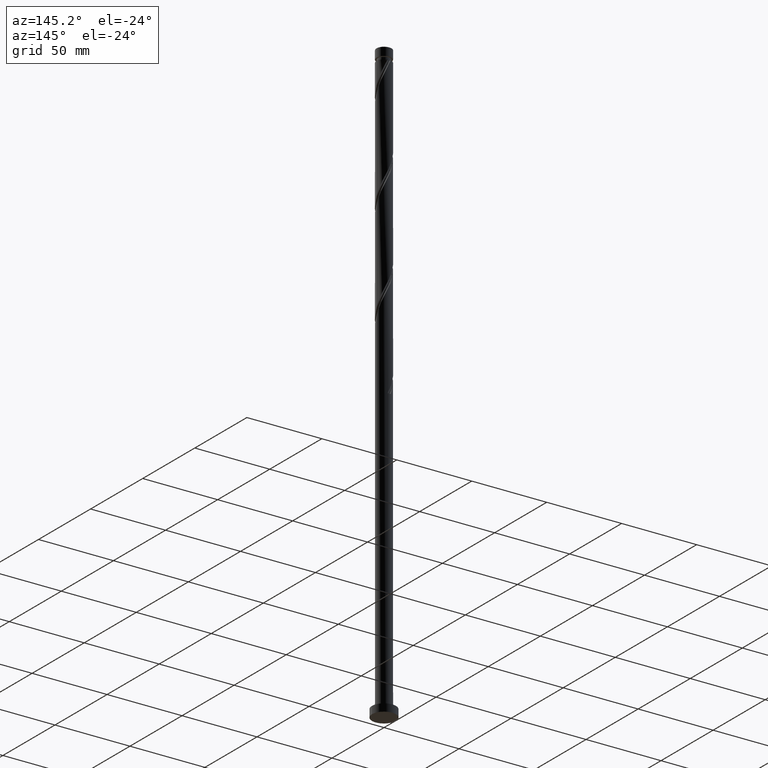
[diagram: clean part render]
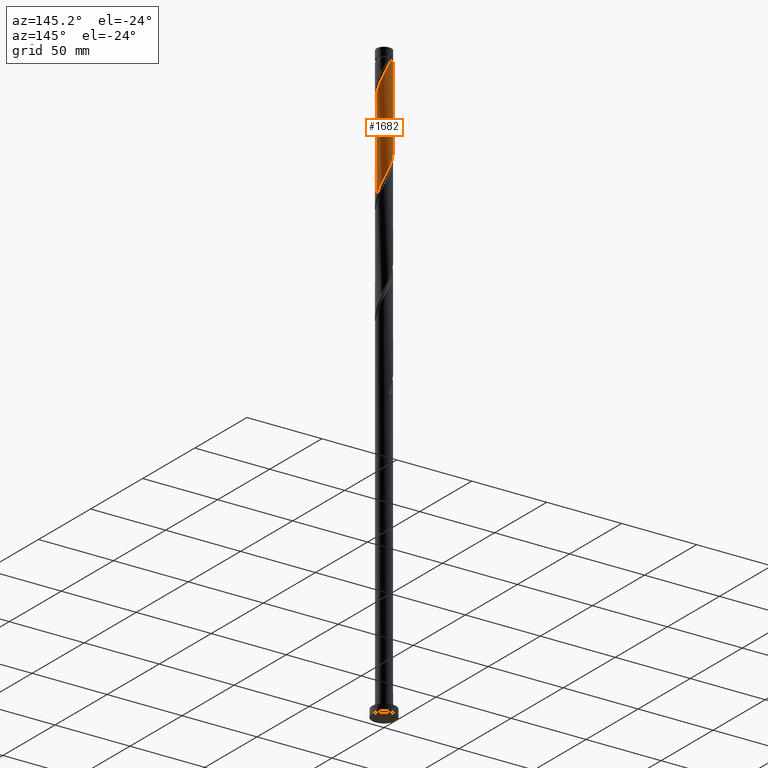
[diagram: same view with one face highlighted and labeled with its STEP entity id]
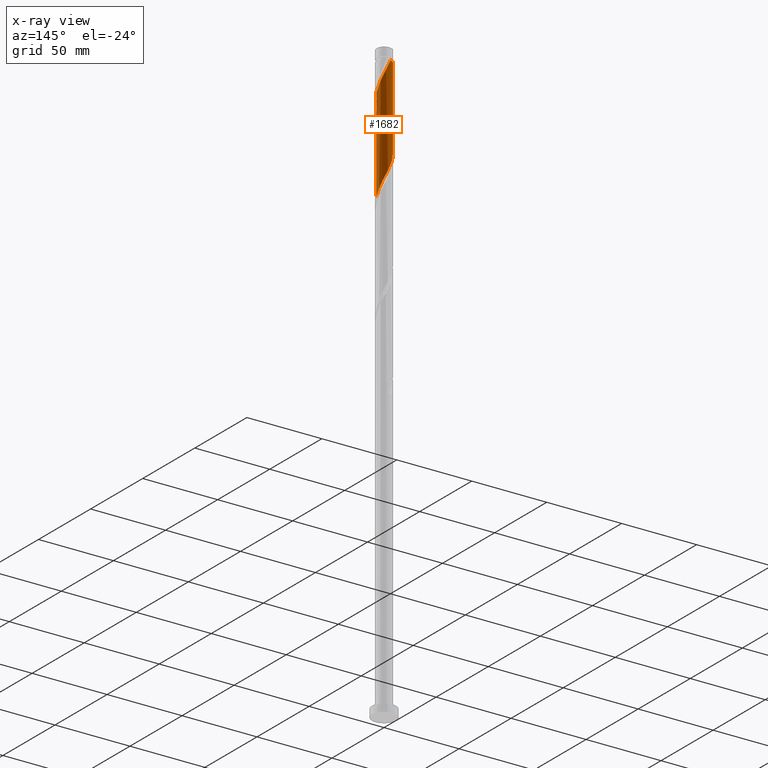
[diagram: x-ray of the same camera — body ghosted, the highlighted face saturated]
A machine part, auxiliary view. The second image highlights one B-rep face of the part: STEP entity #1682.
The next image is the same camera in x-ray: the body ghosted, the highlighted face saturated — about 0% of this face is hidden behind the body in this view.
In plain terms, the highlighted cylindrical surface (edge-blend (fillet) strip) has radius 5 mm, axis along (-0, -0, -1).
Its self-contained STEP definition (entity closure, byte-faithful):
#7 = VERTEX_POINT ( 'NONE', #1178 ) ;
#31 = DIRECTION ( 'NONE',  ( -0.000000000000000000, -0.000000000000000000, -1.000000000000000000 ) ) ;
#42 = EDGE_CURVE ( 'NONE', #919, #7, #567, .T. ) ;
#74 = ORIENTED_EDGE ( 'NONE', *, *, #615, .F. ) ;
#95 = CARTESIAN_POINT ( 'NONE',  ( 2.553307491452761369, 4.330911377627214343, 384.6917190658459731 ) ) ;
#104 = CARTESIAN_POINT ( 'NONE',  ( -0.4799766843048056120, 5.004577393676055586, 391.3583857325126587 ) ) ;
#106 = CARTESIAN_POINT ( 'NONE',  ( 5.000000000000007105, 8.969049252399088130E-17, 373.6773869334355709 ) ) ;
#109 = CARTESIAN_POINT ( 'NONE',  ( -4.769152779533163411, 1.501726261830403919, 341.3583857325127155 ) ) ;
#154 = CARTESIAN_POINT ( 'NONE',  ( 4.307186191949835319, 2.539320205857601653, 316.9139412880682585 ) ) ;
#163 = EDGE_CURVE ( 'NONE', #646, #7, #363, .T. ) ;
#166 = CARTESIAN_POINT ( 'NONE',  ( 0.000000000000000000, 0.000000000000000000, 392.4694968436237446 ) ) ;
#213 = CARTESIAN_POINT ( 'NONE',  ( 4.907956893912948537, 1.090014511032746825, 313.5806079547347736 ) ) ;
#254 = CARTESIAN_POINT ( 'NONE',  ( 4.611314989205103743, 2.002984417588409727, 378.0250523991794012 ) ) ;
#280 = CARTESIAN_POINT ( 'NONE',  ( 3.685109482041953211, 3.379344330689683318, 319.1361635102903733 ) ) ;
#314 = ORIENTED_EDGE ( 'NONE', *, *, #1352, .T. ) ;
#363 = CIRCLE ( 'NONE', #1511, 4.999999999999965361 ) ;
#367 = CARTESIAN_POINT ( 'NONE',  ( 4.999999999999999112, 0.2848686872321704033, 311.8671980631963834 ) ) ;
#406 = CARTESIAN_POINT ( 'NONE',  ( 2.075185990424289528, 4.549022214184805790, 385.8028301769570589 ) ) ;
#410 = CARTESIAN_POINT ( 'NONE',  ( -0.5710221055866057105, 4.995008134297783009, 329.1361635102904302 ) ) ;
#417 = CARTESIAN_POINT ( 'NONE',  ( 3.397958704004512942, 3.705408095291208070, 382.4694968436237446 ) ) ;
#421 = CARTESIAN_POINT ( 'NONE',  ( -4.977161795075916828, 0.4773473218073993607, 343.5806079547349441 ) ) ;
#427 = CARTESIAN_POINT ( 'NONE',  ( 4.926990569861238178, 1.000468106072394114, 375.8028301769571726 ) ) ;
#431 =( BOUNDED_CURVE ( )  B_SPLINE_CURVE ( 2, ( #1822, #1975, #421, #1045, #109, #1869, #1354, #1965, #1364, #1092, #1372, #1673, #1663, #1811, #891, #410, #1035, #1520, #740, #1986, #589, #1056, #1683, #1722, #280, #1556, #154, #774, #1406, #213, #1740, #367, #945 ),
 .UNSPECIFIED., .F., .T. ) 
 B_SPLINE_CURVE_WITH_KNOTS ( ( 3, 2, 2, 2, 2, 2, 2, 2, 2, 2, 2, 2, 2, 2, 2, 2, 3 ),
 ( 0.4295286012773114059, 0.4333333333333333481, 0.4416666666666666519, 0.4500000000000000111, 0.4583333333333333148, 0.4666666666666666741, 0.4749999999999999778, 0.4833333333333333370, 0.4916666666666666408, 0.5000000000000000000, 0.5083333333333333037, 0.5166666666666667185, 0.5250000000000000222, 0.5333333333333333259, 0.5416666666666666297, 0.5500000000000000444, 0.5545286012773112949 ),
 .UNSPECIFIED. ) 
 CURVE ( )  GEOMETRIC_REPRESENTATION_ITEM ( )  RATIONAL_B_SPLINE_CURVE ( ( 0.9066196499552259258, 0.9068171577856385390, 0.9090909090909374823, 0.9041108139711858671, 0.9090909090909374823, 0.9041108139711858671, 0.9090909090909374823, 0.9041108139711858671, 0.9090909090909374823, 0.9041108139711858671, 0.9090909090909374823, 0.9041108139711858671, 0.9090909090909374823, 0.9041108139711858671, 0.9090909090909374823, 0.9041108139711858671, 0.9090909090909374823, 0.9041108139711858671, 0.9090909090909374823, 0.9041108139711858671, 0.9090909090909374823, 0.9041108139711858671, 0.9090909090909374823, 0.9041108139711858671, 0.9090909090909374823, 0.9041108139711858671, 0.9090909090909374823, 0.9041108139711858671, 0.9090909090909374823, 0.9041108139711858671, 0.9090909090909374823, 0.9063845652764848104, 0.9066196499552259258 ) ) 
 REPRESENTATION_ITEM ( '' )  );
#452 = DIRECTION ( 'NONE',  ( -0.000000000000000000, -0.000000000000000000, -1.000000000000000000 ) ) ;
#542 = AXIS2_PLACEMENT_3D ( 'NONE', #1614, #31, #1917 ) ;
#550 = LINE ( 'NONE', #1492, #1131 ) ;
#567 =( BOUNDED_CURVE ( )  B_SPLINE_CURVE ( 2, ( #735, #1019, #585, #427, #1050, #254, #877, #1516, #1669, #417, #1493, #95, #406, #1970, #717, #1503, #1658, #104, #725 ),
 .UNSPECIFIED., .F., .T. ) 
 B_SPLINE_CURVE_WITH_KNOTS ( ( 3, 2, 2, 2, 2, 2, 2, 2, 2, 3 ),
 ( 0.6795286012773115170, 0.6833333333333333481, 0.6916666666666666519, 0.6999999999999999556, 0.7083333333333332593, 0.7166666666666666741, 0.7249999999999999778, 0.7333333333333333925, 0.7416666666666666963, 0.7500000000000000000 ),
 .UNSPECIFIED. ) 
 CURVE ( )  GEOMETRIC_REPRESENTATION_ITEM ( )  RATIONAL_B_SPLINE_CURVE ( ( 0.9066196499552304777, 0.9068171577856432020, 0.9090909090909421453, 0.9041108139711903080, 0.9090909090909421453, 0.9041108139711903080, 0.9090909090909421453, 0.9041108139711903080, 0.9090909090909421453, 0.9041108139711903080, 0.9090909090909421453, 0.9041108139711903080, 0.9090909090909421453, 0.9041108139711903080, 0.9090909090909421453, 0.9041108139711903080, 0.9090909090909421453, 0.9041108139711903080, 0.9090909090909421453 ) ) 
 REPRESENTATION_ITEM ( '' )  );
#578 = VECTOR ( 'NONE', #801, 1000.000000000000000 ) ;
#585 = CARTESIAN_POINT ( 'NONE',  ( 4.977161795075921269, 0.4773473218073948088, 374.6917190658459162 ) ) ;
#589 = CARTESIAN_POINT ( 'NONE',  ( 1.992011859373146621, 4.586053723204382315, 323.5806079547348872 ) ) ;
#615 = EDGE_CURVE ( 'NONE', #1274, #1239, #431, .T. ) ;
#646 = VERTEX_POINT ( 'NONE', #658 ) ;
#658 = CARTESIAN_POINT ( 'NONE',  ( -4.999999999999965361, 0.000000000000000000, 392.4694968436237446 ) ) ;
#717 = CARTESIAN_POINT ( 'NONE',  ( 1.084043297491217084, 4.881070592520091900, 388.0250523991794012 ) ) ;
#725 = CARTESIAN_POINT ( 'NONE',  ( -0.9949874371066238510, 4.900000000000007461, 392.4694968436238582 ) ) ;
#735 = CARTESIAN_POINT ( 'NONE',  ( 5.000000000000007105, 8.969049252399088130E-17, 373.6773869334355709 ) ) ;
#740 = CARTESIAN_POINT ( 'NONE',  ( 0.9949874371066255163, 4.900000000000001243, 325.8028301769571726 ) ) ;
#774 = CARTESIAN_POINT ( 'NONE',  ( 4.574079500281179378, 2.086616695005834021, 315.8028301769570021 ) ) ;
#790 = DIRECTION ( 'NONE',  ( -1.000000000000000000, 0.000000000000000000, 0.000000000000000000 ) ) ;
#801 = DIRECTION ( 'NONE',  ( -0.000000000000000000, -0.000000000000000000, -1.000000000000000000 ) ) ;
#877 = CARTESIAN_POINT ( 'NONE',  ( 4.352708902590737949, 2.460472558129313647, 379.1361635102903165 ) ) ;
#891 = CARTESIAN_POINT ( 'NONE',  ( -1.084043297491211311, 4.881070592520087459, 330.2472746214016297 ) ) ;
#895 = CYLINDRICAL_SURFACE ( 'NONE', #542, 5.000000000000000888 ) ;
#897 = ORIENTED_EDGE ( 'NONE', *, *, #163, .T. ) ;
#919 = VERTEX_POINT ( 'NONE', #106 ) ;
#942 = CARTESIAN_POINT ( 'NONE',  ( 5.000000000000000888, 6.123233995736766282E-16, 400.0000000000000000 ) ) ;
#945 = CARTESIAN_POINT ( 'NONE',  ( 5.000000000000000888, 4.320092056572251041E-15, 311.2616067538119182 ) ) ;
#1007 = DIRECTION ( 'NONE',  ( -0.000000000000000000, -0.000000000000000000, -1.000000000000000000 ) ) ;
#1019 = CARTESIAN_POINT ( 'NONE',  ( 5.000000000000007105, 0.2392199964337486384, 374.1859354589996656 ) ) ;
#1035 = CARTESIAN_POINT ( 'NONE',  ( -0.04552271064089768310, 4.999792763986913968, 328.0250523991794012 ) ) ;
#1045 = CARTESIAN_POINT ( 'NONE',  ( -4.926990569861231961, 1.000468106072394114, 342.4694968436237446 ) ) ;
#1050 = CARTESIAN_POINT ( 'NONE',  ( 4.769152779533169628, 1.501726261830401254, 376.9139412880680879 ) ) ;
#1056 = CARTESIAN_POINT ( 'NONE',  ( 2.474025528837849652, 4.376684840084808847, 322.4694968436237446 ) ) ;
#1092 = CARTESIAN_POINT ( 'NONE',  ( -3.397958704004507613, 3.705408095291204962, 335.8028301769570021 ) ) ;
#1110 = CARTESIAN_POINT ( 'NONE',  ( 5.000000000000000888, 4.320092056572251041E-15, 311.2616067538119182 ) ) ;
#1131 = VECTOR ( 'NONE', #1007, 1000.000000000000000 ) ;
#1178 = CARTESIAN_POINT ( 'NONE',  ( -0.9949874371066238510, 4.900000000000006573, 392.4694968436238582 ) ) ;
#1239 = VERTEX_POINT ( 'NONE', #1110 ) ;
#1274 = VERTEX_POINT ( 'NONE', #1450 ) ;
#1352 = EDGE_CURVE ( 'NONE', #919, #1239, #1727, .T. ) ;
#1354 = CARTESIAN_POINT ( 'NONE',  ( -4.352708902590731732, 2.460472558129311871, 339.1361635102904302 ) ) ;
#1364 = CARTESIAN_POINT ( 'NONE',  ( -3.746030759990437886, 3.311684396980709710, 336.9139412880681448 ) ) ;
#1372 = CARTESIAN_POINT ( 'NONE',  ( -2.975633097728630272, 4.018159736459207210, 334.6917190658459731 ) ) ;
#1406 = CARTESIAN_POINT ( 'NONE',  ( 4.741018197097064402, 1.588315603019288647, 314.6917190658459731 ) ) ;
#1450 = CARTESIAN_POINT ( 'NONE',  ( -5.000000000000000000, -3.169064069181027409E-15, 344.5949400871452326 ) ) ;
#1492 = CARTESIAN_POINT ( 'NONE',  ( -5.000000000000000888, 0.000000000000000000, 400.0000000000000000 ) ) ;
#1493 = CARTESIAN_POINT ( 'NONE',  ( 2.975633097728635157, 4.018159736459209874, 383.5806079547348304 ) ) ;
#1503 = CARTESIAN_POINT ( 'NONE',  ( 0.5710221055866081530, 4.995008134297789226, 389.1361635102903733 ) ) ;
#1511 = AXIS2_PLACEMENT_3D ( 'NONE', #166, #452, #790 ) ;
#1516 = CARTESIAN_POINT ( 'NONE',  ( 4.094102815976375709, 2.917960698670214459, 380.2472746214015729 ) ) ;
#1520 = CARTESIAN_POINT ( 'NONE',  ( 0.4799766843048096643, 5.004577393676047592, 326.9139412880679743 ) ) ;
#1556 = CARTESIAN_POINT ( 'NONE',  ( 4.040292883618492148, 2.992023716709367953, 318.0250523991792306 ) ) ;
#1614 = CARTESIAN_POINT ( 'NONE',  ( 0.000000000000000000, 0.000000000000000000, 400.0000000000000000 ) ) ;
#1648 = ORIENTED_EDGE ( 'NONE', *, *, #1860, .F. ) ;
#1658 = CARTESIAN_POINT ( 'NONE',  ( 0.04552271064090124969, 4.999792763986920185, 390.2472746214014592 ) ) ;
#1663 = CARTESIAN_POINT ( 'NONE',  ( -2.075185990424285531, 4.549022214184804014, 332.4694968436238014 ) ) ;
#1669 = CARTESIAN_POINT ( 'NONE',  ( 3.746030759990444992, 3.311684396980708822, 381.3583857325125450 ) ) ;
#1673 = CARTESIAN_POINT ( 'NONE',  ( -2.553307491452753375, 4.330911377627211678, 333.5806079547348872 ) ) ;
#1676 = FACE_OUTER_BOUND ( 'NONE', #1767, .T. ) ;
#1678 = ORIENTED_EDGE ( 'NONE', *, *, #42, .F. ) ;
#1682 = ADVANCED_FACE ( 'NONE', ( #1676 ), #895, .T. ) ;
#1683 = CARTESIAN_POINT ( 'NONE',  ( 2.901975804651633961, 4.071674892377400212, 321.3583857325126587 ) ) ;
#1722 = CARTESIAN_POINT ( 'NONE',  ( 3.329926080465414717, 3.766664944669994686, 320.2472746214015729 ) ) ;
#1727 = LINE ( 'NONE', #942, #578 ) ;
#1740 = CARTESIAN_POINT ( 'NONE',  ( 4.967644957101774672, 0.5678939867451723300, 312.4694968436236877 ) ) ;
#1767 = EDGE_LOOP ( 'NONE', ( #1678, #314, #74, #1648, #897 ) ) ;
#1811 = CARTESIAN_POINT ( 'NONE',  ( -1.597064489395817466, 4.767133050742391021, 331.3583857325126587 ) ) ;
#1822 = CARTESIAN_POINT ( 'NONE',  ( -5.000000000000000000, -3.169064069181027015E-15, 344.5949400871452326 ) ) ;
#1860 = EDGE_CURVE ( 'NONE', #646, #1274, #550, .T. ) ;
#1869 = CARTESIAN_POINT ( 'NONE',  ( -4.611314989205095749, 2.002984417588411503, 340.2472746214015160 ) ) ;
#1917 = DIRECTION ( 'NONE',  ( -1.000000000000000000, 0.000000000000000000, 0.000000000000000000 ) ) ;
#1965 = CARTESIAN_POINT ( 'NONE',  ( -4.094102815976368603, 2.917960698670212683, 338.0250523991791738 ) ) ;
#1970 = CARTESIAN_POINT ( 'NONE',  ( 1.597064489395822795, 4.767133050742397238, 386.9139412880683153 ) ) ;
#1975 = CARTESIAN_POINT ( 'NONE',  ( -5.000000000000001776, 0.2392199964337474727, 344.0863915615811948 ) ) ;
#1986 = CARTESIAN_POINT ( 'NONE',  ( 1.509998189908443145, 4.795422606323951342, 324.6917190658458594 ) ) ;